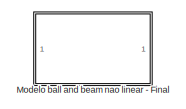
[diagram: root canvas - part 1/4, top left region]
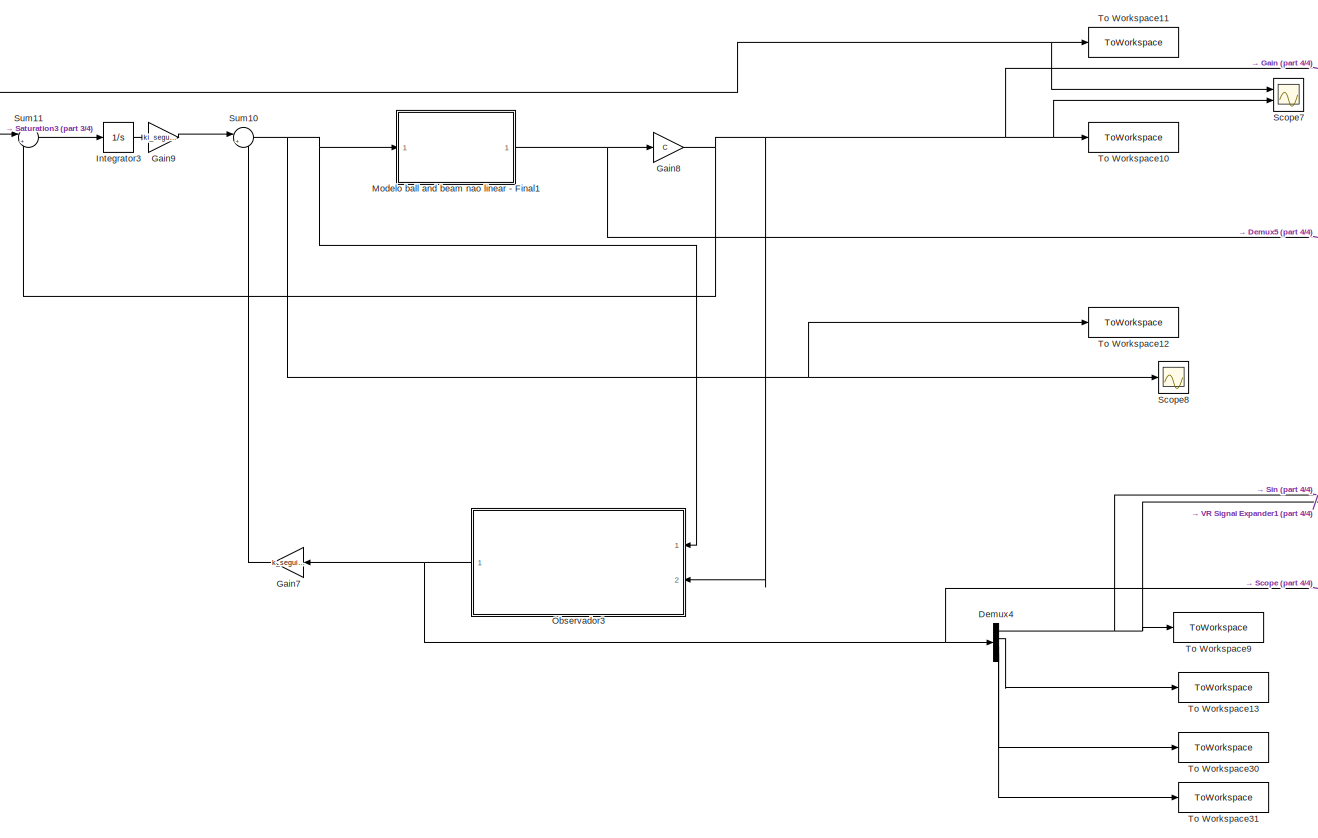
[diagram: root canvas - part 2/4, center side, full height]
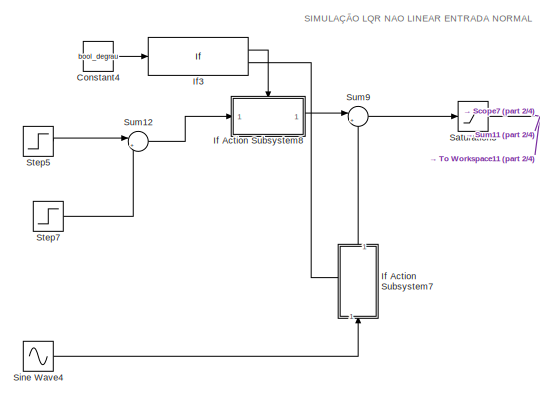
[diagram: root canvas - part 3/4, middle left region]
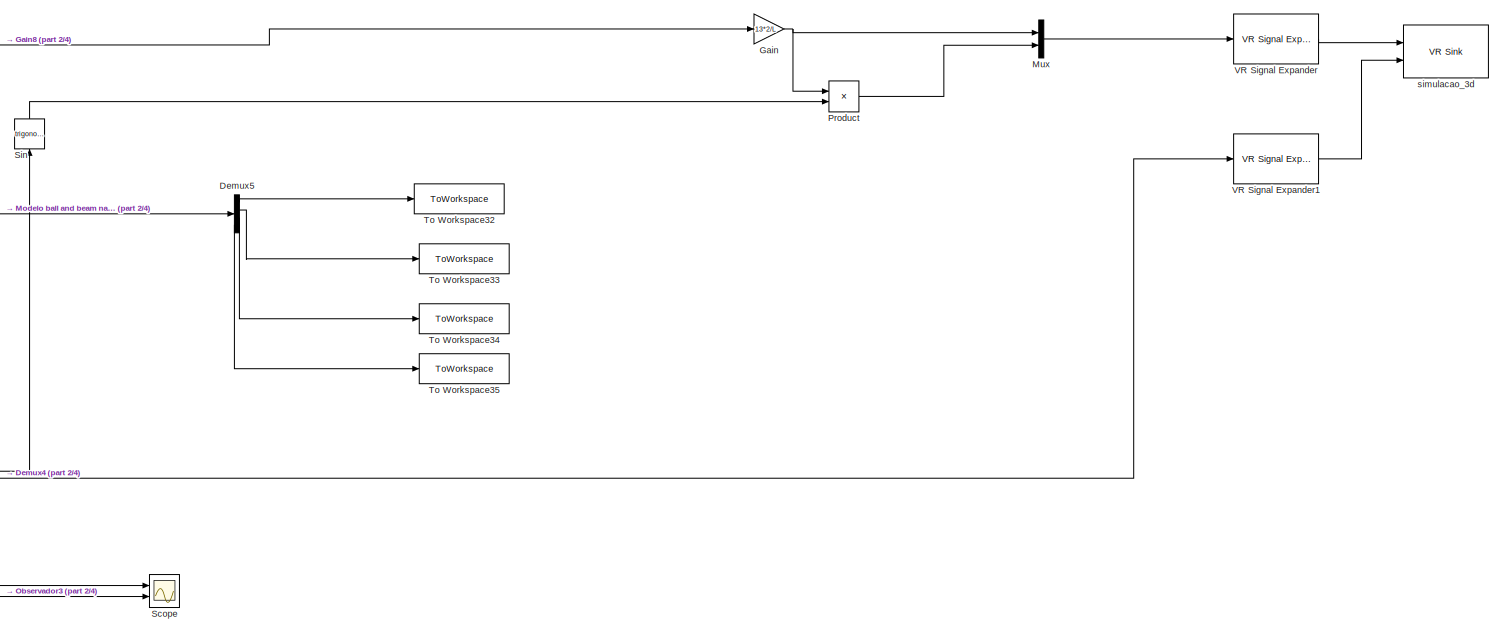
[diagram: root canvas - part 4/4, middle right region]
MODEL slx_c4135e72b5f1
KIND model
CONFIG AbsTol = auto
CONFIG EnableMultiTasking = off
CONFIG FixedStep = auto
CONFIG MaxStep = auto
CONFIG MinStep = auto
CONFIG RelTol = 1e-3
CONFIG SampleTimeConstraint = Unconstrained
CONFIG SolverName = VariableStepAuto
CONFIG StartTime = 0
CONFIG StopTime = 100
BLOCK [Constant] Constant4
  Value = bool_degrau
BLOCK [Demux] Demux4
  Ports = [1, 4]
BLOCK [Demux] Demux5
  Ports = [1, 4]
BLOCK [Gain] Gain
  Gain = 13*2/L
BLOCK [Gain] Gain7
  Gain = k_seguimento
  Multiplication = Matrix(K*u)
  NameLocation = top
BLOCK [Gain] Gain8
  Gain = C
  Multiplication = Matrix(K*u)
BLOCK [Gain] Gain9
  Gain = ki_seguimento
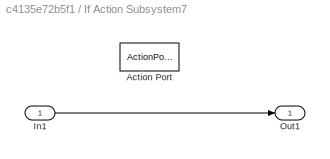
BLOCK [SubSystem] If Action Subsystem7
  NameLocation = right
  Ports = [1, 1, 0, 0, 0, 0, 0, 1]
  RequestExecContextInheritance = off
  TreatAsAtomicUnit = on
BLOCK [ActionPort] If Action Subsystem7/Action Port
  ActionPortLabel = else
BLOCK [Inport] If Action Subsystem7/In1
BLOCK [Outport] If Action Subsystem7/Out1
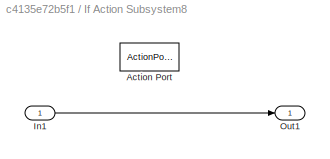
BLOCK [SubSystem] If Action Subsystem8
  Ports = [1, 1, 0, 0, 0, 0, 0, 1]
  RequestExecContextInheritance = off
  TreatAsAtomicUnit = on
BLOCK [ActionPort] If Action Subsystem8/Action Port
  ActionPortLabel = if(u1 == 1)
BLOCK [Inport] If Action Subsystem8/In1
BLOCK [Outport] If Action Subsystem8/Out1
BLOCK [If] If3
  IfExpression = u1 == 1
  Ports = [1, 2]
BLOCK [Integrator] Integrator3
  Ports = [1, 1]
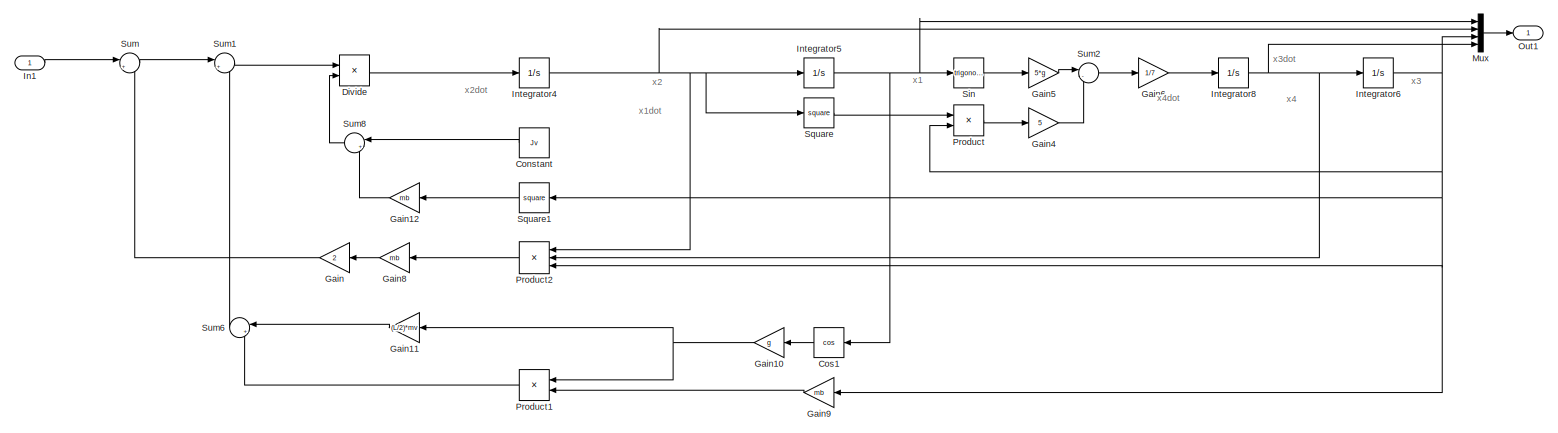
[diagram: Modelo ball and beam nao linear - Final - part 1/1, most of the canvas]
BLOCK [SubSystem] Modelo ball and beam nao linear - Final
  Ports = [1, 1]
  RequestExecContextInheritance = off
BLOCK [Constant] Modelo ball and beam nao linear - Final/Constant
  NameLocation = top
  Value = Jv
BLOCK [Trigonometry] Modelo ball and beam nao linear - Final/Cos1
  NameLocation = top
  Operator = cos
  Ports = [1, 1]
BLOCK [Product] Modelo ball and beam nao linear - Final/Divide
  Inputs = */
  Ports = [2, 1]
BLOCK [Gain] Modelo ball and beam nao linear - Final/Gain
  Gain = 2
  NameLocation = top
BLOCK [Gain] Modelo ball and beam nao linear - Final/Gain10
  Gain = g
  NameLocation = top
BLOCK [Gain] Modelo ball and beam nao linear - Final/Gain11
  Gain = (L/2)*mv
  NameLocation = top
BLOCK [Gain] Modelo ball and beam nao linear - Final/Gain12
  Gain = mb
  NameLocation = top
BLOCK [Gain] Modelo ball and beam nao linear - Final/Gain4
  Gain = 5
BLOCK [Gain] Modelo ball and beam nao linear - Final/Gain5
  Gain = 5*g
BLOCK [Gain] Modelo ball and beam nao linear - Final/Gain6
  Gain = 1/7
BLOCK [Gain] Modelo ball and beam nao linear - Final/Gain8
  Gain = mb
  NameLocation = top
BLOCK [Gain] Modelo ball and beam nao linear - Final/Gain9
  Gain = mb
  NameLocation = top
BLOCK [Inport] Modelo ball and beam nao linear - Final/In1
BLOCK [Integrator] Modelo ball and beam nao linear - Final/Integrator4
  Ports = [1, 1]
BLOCK [Integrator] Modelo ball and beam nao linear - Final/Integrator5
  Ports = [1, 1]
BLOCK [Integrator] Modelo ball and beam nao linear - Final/Integrator6
  Ports = [1, 1]
BLOCK [Integrator] Modelo ball and beam nao linear - Final/Integrator8
  Ports = [1, 1]
BLOCK [Mux] Modelo ball and beam nao linear - Final/Mux
  DisplayOption = bar
  Ports = [4, 1]
BLOCK [Outport] Modelo ball and beam nao linear - Final/Out1
BLOCK [Product] Modelo ball and beam nao linear - Final/Product
  Ports = [2, 1]
BLOCK [Product] Modelo ball and beam nao linear - Final/Product1
  NameLocation = top
  Ports = [2, 1]
BLOCK [Product] Modelo ball and beam nao linear - Final/Product2
  Inputs = 3
  NameLocation = top
  Ports = [3, 1]
BLOCK [Trigonometry] Modelo ball and beam nao linear - Final/Sin
  Ports = [1, 1]
BLOCK [Math] Modelo ball and beam nao linear - Final/Square
  Operator = square
  Ports = [1, 1]
BLOCK [Math] Modelo ball and beam nao linear - Final/Square1
  NameLocation = top
  Operator = square
  Ports = [1, 1]
BLOCK [Sum] Modelo ball and beam nao linear - Final/Sum
  Inputs = |+-
  Ports = [2, 1]
BLOCK [Sum] Modelo ball and beam nao linear - Final/Sum1
  Inputs = |+-
  Ports = [2, 1]
BLOCK [Sum] Modelo ball and beam nao linear - Final/Sum2
  Inputs = |-+
  NameLocation = top
  Ports = [2, 1]
BLOCK [Sum] Modelo ball and beam nao linear - Final/Sum6
  Inputs = |++
  NameLocation = top
  Ports = [2, 1]
BLOCK [Sum] Modelo ball and beam nao linear - Final/Sum8
  Inputs = |++
  NameLocation = top
  Ports = [2, 1]
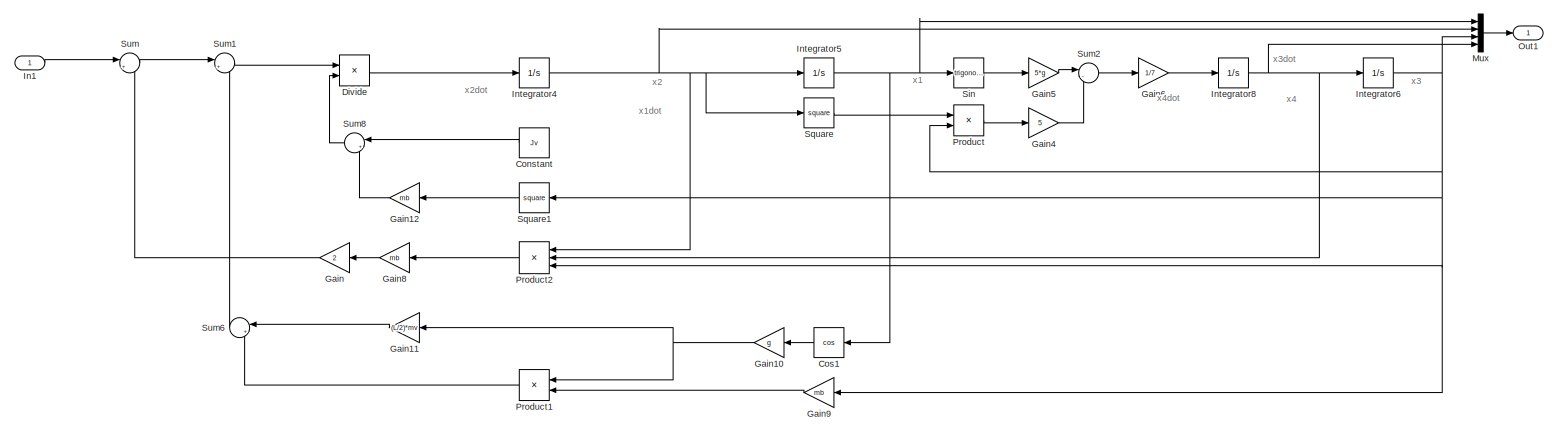
[diagram: Modelo ball and beam nao linear - Final1 - part 1/1, most of the canvas]
BLOCK [SubSystem] Modelo ball and beam nao linear - Final1
  Ports = [1, 1]
  RequestExecContextInheritance = off
BLOCK [Constant] Modelo ball and beam nao linear - Final1/Constant
  NameLocation = top
  Value = Jv
BLOCK [Trigonometry] Modelo ball and beam nao linear - Final1/Cos1
  NameLocation = top
  Operator = cos
  Ports = [1, 1]
BLOCK [Product] Modelo ball and beam nao linear - Final1/Divide
  Inputs = */
  Ports = [2, 1]
BLOCK [Gain] Modelo ball and beam nao linear - Final1/Gain
  Gain = 2
  NameLocation = top
BLOCK [Gain] Modelo ball and beam nao linear - Final1/Gain10
  Gain = g
  NameLocation = top
BLOCK [Gain] Modelo ball and beam nao linear - Final1/Gain11
  Gain = (L/2)*mv
  NameLocation = top
BLOCK [Gain] Modelo ball and beam nao linear - Final1/Gain12
  Gain = mb
  NameLocation = top
BLOCK [Gain] Modelo ball and beam nao linear - Final1/Gain4
  Gain = 5
BLOCK [Gain] Modelo ball and beam nao linear - Final1/Gain5
  Gain = 5*g
BLOCK [Gain] Modelo ball and beam nao linear - Final1/Gain6
  Gain = 1/7
BLOCK [Gain] Modelo ball and beam nao linear - Final1/Gain8
  Gain = mb
  NameLocation = top
BLOCK [Gain] Modelo ball and beam nao linear - Final1/Gain9
  Gain = mb
  NameLocation = top
BLOCK [Inport] Modelo ball and beam nao linear - Final1/In1
BLOCK [Integrator] Modelo ball and beam nao linear - Final1/Integrator4
  Ports = [1, 1]
BLOCK [Integrator] Modelo ball and beam nao linear - Final1/Integrator5
  Ports = [1, 1]
BLOCK [Integrator] Modelo ball and beam nao linear - Final1/Integrator6
  Ports = [1, 1]
BLOCK [Integrator] Modelo ball and beam nao linear - Final1/Integrator8
  Ports = [1, 1]
BLOCK [Mux] Modelo ball and beam nao linear - Final1/Mux
  DisplayOption = bar
  Ports = [4, 1]
BLOCK [Outport] Modelo ball and beam nao linear - Final1/Out1
BLOCK [Product] Modelo ball and beam nao linear - Final1/Product
  Ports = [2, 1]
BLOCK [Product] Modelo ball and beam nao linear - Final1/Product1
  NameLocation = top
  Ports = [2, 1]
BLOCK [Product] Modelo ball and beam nao linear - Final1/Product2
  Inputs = 3
  NameLocation = top
  Ports = [3, 1]
BLOCK [Trigonometry] Modelo ball and beam nao linear - Final1/Sin
  Ports = [1, 1]
BLOCK [Math] Modelo ball and beam nao linear - Final1/Square
  Operator = square
  Ports = [1, 1]
BLOCK [Math] Modelo ball and beam nao linear - Final1/Square1
  NameLocation = top
  Operator = square
  Ports = [1, 1]
BLOCK [Sum] Modelo ball and beam nao linear - Final1/Sum
  Inputs = |+-
  Ports = [2, 1]
BLOCK [Sum] Modelo ball and beam nao linear - Final1/Sum1
  Inputs = |+-
  Ports = [2, 1]
BLOCK [Sum] Modelo ball and beam nao linear - Final1/Sum2
  Inputs = |-+
  NameLocation = top
  Ports = [2, 1]
BLOCK [Sum] Modelo ball and beam nao linear - Final1/Sum6
  Inputs = |++
  NameLocation = top
  Ports = [2, 1]
BLOCK [Sum] Modelo ball and beam nao linear - Final1/Sum8
  Inputs = |++
  NameLocation = top
  Ports = [2, 1]
BLOCK [Mux] Mux
  DisplayOption = bar
  Inputs = 2
  Ports = [2, 1]
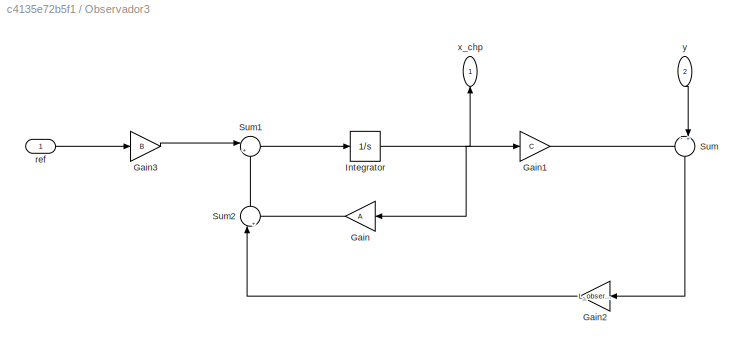
BLOCK [SubSystem] Observador3
  NameLocation = top
  Ports = [2, 1]
  RequestExecContextInheritance = off
BLOCK [Gain] Observador3/Gain
  Gain = A
  Multiplication = Matrix(K*u)
  NameLocation = top
BLOCK [Gain] Observador3/Gain1
  Gain = C
  Multiplication = Matrix(K*u)
BLOCK [Gain] Observador3/Gain2
  Gain = L_observer_lqr
  Multiplication = Matrix(K*u)
  NameLocation = top
BLOCK [Gain] Observador3/Gain3
  Gain = B
  Multiplication = Matrix(K*u)
BLOCK [Integrator] Observador3/Integrator
  Ports = [1, 1]
BLOCK [Sum] Observador3/Sum
  Inputs = -+|
  NameLocation = left
  Ports = [2, 1]
BLOCK [Sum] Observador3/Sum1
  Inputs = |++
  Ports = [2, 1]
BLOCK [Sum] Observador3/Sum2
  Inputs = |++
  NameLocation = right
  Ports = [2, 1]
BLOCK [Inport] Observador3/ref
BLOCK [Outport] Observador3/x_chp
  NameLocation = right
BLOCK [Inport] Observador3/y
  NameLocation = left
  Port = 2
BLOCK [Product] Product
  Ports = [2, 1]
BLOCK [Saturate] Saturation3
  LowerLimit = -L/2
  UpperLimit = L/2
BLOCK [Scope] Scope
  Floating = off
  NumInputPorts = 2
  Ports = [2]
  ScopeSpecificationString = Simulink.scopes.TimeScopeBlockCfg('CurrentConfiguration', extmgr.ConfigurationSet(extmgr.Configuration('Core','General UI',true),extmgr.Configuration('Core','Source UI',true),extmgr.Configuration('Sources','WiredSimulink',true,'DataLoggingVariableName','ScopeData1'),extmgr.Configuration('Visuals','Time Domain',true,'SerializedDisplays',{struct('MinYLimReal','-70043.69182','MaxYLimReal','82861.5366...<+1659ch>
BLOCK [Scope] Scope7
  Floating = off
  NumInputPorts = 2
  Ports = [2]
  ScopeSpecificationString = Simulink.scopes.TimeScopeBlockCfg('CurrentConfiguration', extmgr.ConfigurationSet(extmgr.Configuration('Core','General UI',true,'FigureColor',[1 1 1]),extmgr.Configuration('Core','Source UI',true),extmgr.Configuration('Sources','WiredSimulink',true,'DataLoggingVariableName','ScopeData1'),extmgr.Configuration('Visuals','Time Domain',true,'SerializedDisplays',{struct('MinYLimReal','-3536.58192','Max...<+1839ch>
BLOCK [Scope] Scope8
  Floating = off
  NumInputPorts = 1
  Ports = [1]
  ScopeSpecificationString = Simulink.scopes.TimeScopeBlockCfg('CurrentConfiguration', extmgr.ConfigurationSet(extmgr.Configuration('Core','General UI',true),extmgr.Configuration('Core','Source UI',true),extmgr.Configuration('Sources','WiredSimulink',true),extmgr.Configuration('Visuals','Time Domain',true,'SerializedDisplays',{struct('MinYLimReal','-16664.87649','MaxYLimReal','149983.88837','YLabelReal','','MinYLimMag','   0....<+1413ch>
BLOCK [Trigonometry] Sin
  NameLocation = right
  Ports = [1, 1]
BLOCK [Sin] Sine Wave4
  Amplitude = amplitude_entrada
  Frequency = 0.1
  Ports = [0, 1]
  SampleTime = 0
BLOCK [Step] Step5
  After = amplitude_entrada
  SampleTime = 0
BLOCK [Step] Step7
  After = -2*amplitude_entrada
  SampleTime = 0
  Time = 100
BLOCK [Sum] Sum10
  Inputs = |+-
  Ports = [2, 1]
BLOCK [Sum] Sum11
  Inputs = |+-
  Ports = [2, 1]
BLOCK [Sum] Sum12
  Inputs = |++
  Ports = [2, 1]
BLOCK [Sum] Sum9
  Inputs = |++
  Ports = [2, 1]
BLOCK [ToWorkspace] To Workspace10
  FixptAsFi = on
  MaxDataPoints = inf
  Ports = [1]
  SampleTime = -1
  SaveFormat = Timeseries
  VariableName = y_output
BLOCK [ToWorkspace] To Workspace11
  FixptAsFi = on
  MaxDataPoints = inf
  Ports = [1]
  SampleTime = -1
  SaveFormat = Timeseries
  VariableName = u_output
BLOCK [ToWorkspace] To Workspace12
  FixptAsFi = on
  MaxDataPoints = inf
  Ports = [1]
  SampleTime = -1
  SaveFormat = Timeseries
  VariableName = acao_controle
BLOCK [ToWorkspace] To Workspace13
  FixptAsFi = on
  MaxDataPoints = inf
  Ports = [1]
  SampleTime = -1
  SaveFormat = Timeseries
  VariableName = output_estados_observador_2
BLOCK [ToWorkspace] To Workspace30
  FixptAsFi = on
  MaxDataPoints = inf
  Ports = [1]
  SampleTime = -1
  SaveFormat = Timeseries
  VariableName = output_estados_observador_3
BLOCK [ToWorkspace] To Workspace31
  FixptAsFi = on
  MaxDataPoints = inf
  Ports = [1]
  SampleTime = -1
  SaveFormat = Timeseries
  VariableName = output_estados_observador_4
BLOCK [ToWorkspace] To Workspace32
  FixptAsFi = on
  MaxDataPoints = inf
  Ports = [1]
  SampleTime = -1
  SaveFormat = Timeseries
  VariableName = output_estados_1
BLOCK [ToWorkspace] To Workspace33
  FixptAsFi = on
  MaxDataPoints = inf
  Ports = [1]
  SampleTime = -1
  SaveFormat = Timeseries
  VariableName = output_estados_2
BLOCK [ToWorkspace] To Workspace34
  FixptAsFi = on
  MaxDataPoints = inf
  Ports = [1]
  SampleTime = -1
  SaveFormat = Timeseries
  VariableName = output_estados_3
BLOCK [ToWorkspace] To Workspace35
  FixptAsFi = on
  MaxDataPoints = inf
  Ports = [1]
  SampleTime = -1
  SaveFormat = Timeseries
  VariableName = output_estados_4
BLOCK [ToWorkspace] To Workspace9
  FixptAsFi = on
  MaxDataPoints = inf
  Ports = [1]
  SampleTime = -1
  SaveFormat = Timeseries
  VariableName = output_estados_observador_1
BLOCK [Reference] VR Signal Expander  REF=vrlib/VR Signal Expander
  Ports = [1, 1]
  SourceBlock = vrlib/VR Signal Expander
  SourceProductBaseCode = SL
  SourceType = VR Signal Expander
BLOCK [Reference] VR Signal Expander1  REF=vrlib/VR Signal Expander
  Ports = [1, 1]
  SourceBlock = vrlib/VR Signal Expander
  SourceProductBaseCode = SL
  SourceType = VR Signal Expander
BLOCK [Reference] simulacao_3d  REF=vrlib/VR Sink
  InstantiateOnLoad = on
  Ports = [2]
  SourceBlock = vrlib/VR Sink
  SourceProductBaseCode = SL
  SourceType = Virtual Reality Sink
ANNOTATION (root): SIMULAÇÃO LQR NAO LINEAR ENTRADA NORMAL
ANNOTATION Modelo ball and beam nao linear - Final: x1
ANNOTATION Modelo ball and beam nao linear - Final: x1dot
ANNOTATION Modelo ball and beam nao linear - Final: x2
ANNOTATION Modelo ball and beam nao linear - Final: x2dot
ANNOTATION Modelo ball and beam nao linear - Final: x3
ANNOTATION Modelo ball and beam nao linear - Final: x3dot
ANNOTATION Modelo ball and beam nao linear - Final: x4
ANNOTATION Modelo ball and beam nao linear - Final: x4dot
ANNOTATION Modelo ball and beam nao linear - Final1: x1
ANNOTATION Modelo ball and beam nao linear - Final1: x1dot
ANNOTATION Modelo ball and beam nao linear - Final1: x2
ANNOTATION Modelo ball and beam nao linear - Final1: x2dot
ANNOTATION Modelo ball and beam nao linear - Final1: x3
ANNOTATION Modelo ball and beam nao linear - Final1: x3dot
ANNOTATION Modelo ball and beam nao linear - Final1: x4
ANNOTATION Modelo ball and beam nao linear - Final1: x4dot
LINE Constant4:1 -> If3:1
NET Demux4:1 -> Sin:1, To Workspace9:1, VR Signal Expander1:1
LINE Demux4:2 -> To Workspace13:1
LINE Demux4:3 -> To Workspace30:1
LINE Demux4:4 -> To Workspace31:1
LINE Demux5:1 -> To Workspace32:1
LINE Demux5:2 -> To Workspace33:1
LINE Demux5:3 -> To Workspace34:1
LINE Demux5:4 -> To Workspace35:1
LINE Gain7:1 -> Sum10:2
NET Gain8:1 -> Gain:1, Observador3:2, Scope7:2, Sum11:2, To Workspace10:1
LINE Gain9:1 -> Sum10:1
NET Gain:1 -> Mux:1, Product:1
LINE If Action Subsystem7/In1:1 -> If Action Subsystem7/Out1:1
LINE If Action Subsystem7:1 -> Sum9:2
LINE If Action Subsystem8/In1:1 -> If Action Subsystem8/Out1:1
LINE If Action Subsystem8:1 -> Sum9:1
LINE If3:1 -> If Action Subsystem8:ifaction
LINE If3:2 -> If Action Subsystem7:ifaction
LINE Integrator3:1 -> Gain9:1
LINE Modelo ball and beam nao linear - Final/Constant:1 -> Modelo ball and beam nao linear - Final/Sum8:1
LINE Modelo ball and beam nao linear - Final/Cos1:1 -> Modelo ball and beam nao linear - Final/Gain10:1
LINE Modelo ball and beam nao linear - Final/Divide:1 -> Modelo ball and beam nao linear - Final/Integrator4:1
NET Modelo ball and beam nao linear - Final/Gain10:1 -> Modelo ball and beam nao linear - Final/Gain11:1, Modelo ball and beam nao linear - Final/Product1:1
LINE Modelo ball and beam nao linear - Final/Gain11:1 -> Modelo ball and beam nao linear - Final/Sum6:1
LINE Modelo ball and beam nao linear - Final/Gain12:1 -> Modelo ball and beam nao linear - Final/Sum8:2
LINE Modelo ball and beam nao linear - Final/Gain4:1 -> Modelo ball and beam nao linear - Final/Sum2:2
LINE Modelo ball and beam nao linear - Final/Gain5:1 -> Modelo ball and beam nao linear - Final/Sum2:1
LINE Modelo ball and beam nao linear - Final/Gain6:1 -> Modelo ball and beam nao linear - Final/Integrator8:1
LINE Modelo ball and beam nao linear - Final/Gain8:1 -> Modelo ball and beam nao linear - Final/Gain:1
LINE Modelo ball and beam nao linear - Final/Gain9:1 -> Modelo ball and beam nao linear - Final/Product1:2
LINE Modelo ball and beam nao linear - Final/Gain:1 -> Modelo ball and beam nao linear - Final/Sum:2
LINE Modelo ball and beam nao linear - Final/In1:1 -> Modelo ball and beam nao linear - Final/Sum:1
NET Modelo ball and beam nao linear - Final/Integrator4:1 -> Modelo ball and beam nao linear - Final/Integrator5:1, Modelo ball and beam nao linear - Final/Mux:2, Modelo ball and beam nao linear - Final/Product2:1, Modelo ball and beam nao linear - Final/Square:1
NET Modelo ball and beam nao linear - Final/Integrator5:1 -> Modelo ball and beam nao linear - Final/Cos1:1, Modelo ball and beam nao linear - Final/Mux:1, Modelo ball and beam nao linear - Final/Sin:1
NET Modelo ball and beam nao linear - Final/Integrator6:1 -> Modelo ball and beam nao linear - Final/Gain9:1, Modelo ball and beam nao linear - Final/Mux:3, Modelo ball and beam nao linear - Final/Product2:3, Modelo ball and beam nao linear - Final/Product:2, Modelo ball and beam nao linear - Final/Square1:1
NET Modelo ball and beam nao linear - Final/Integrator8:1 -> Modelo ball and beam nao linear - Final/Integrator6:1, Modelo ball and beam nao linear - Final/Mux:4, Modelo ball and beam nao linear - Final/Product2:2
LINE Modelo ball and beam nao linear - Final/Mux:1 -> Modelo ball and beam nao linear - Final/Out1:1
LINE Modelo ball and beam nao linear - Final/Product1:1 -> Modelo ball and beam nao linear - Final/Sum6:2
LINE Modelo ball and beam nao linear - Final/Product2:1 -> Modelo ball and beam nao linear - Final/Gain8:1
LINE Modelo ball and beam nao linear - Final/Product:1 -> Modelo ball and beam nao linear - Final/Gain4:1
LINE Modelo ball and beam nao linear - Final/Sin:1 -> Modelo ball and beam nao linear - Final/Gain5:1
LINE Modelo ball and beam nao linear - Final/Square1:1 -> Modelo ball and beam nao linear - Final/Gain12:1
LINE Modelo ball and beam nao linear - Final/Square:1 -> Modelo ball and beam nao linear - Final/Product:1
LINE Modelo ball and beam nao linear - Final/Sum1:1 -> Modelo ball and beam nao linear - Final/Divide:1
LINE Modelo ball and beam nao linear - Final/Sum2:1 -> Modelo ball and beam nao linear - Final/Gain6:1
LINE Modelo ball and beam nao linear - Final/Sum6:1 -> Modelo ball and beam nao linear - Final/Sum1:2
LINE Modelo ball and beam nao linear - Final/Sum8:1 -> Modelo ball and beam nao linear - Final/Divide:2
LINE Modelo ball and beam nao linear - Final/Sum:1 -> Modelo ball and beam nao linear - Final/Sum1:1
LINE Modelo ball and beam nao linear - Final1/Constant:1 -> Modelo ball and beam nao linear - Final1/Sum8:1
LINE Modelo ball and beam nao linear - Final1/Cos1:1 -> Modelo ball and beam nao linear - Final1/Gain10:1
LINE Modelo ball and beam nao linear - Final1/Divide:1 -> Modelo ball and beam nao linear - Final1/Integrator4:1
NET Modelo ball and beam nao linear - Final1/Gain10:1 -> Modelo ball and beam nao linear - Final1/Gain11:1, Modelo ball and beam nao linear - Final1/Product1:1
LINE Modelo ball and beam nao linear - Final1/Gain11:1 -> Modelo ball and beam nao linear - Final1/Sum6:1
LINE Modelo ball and beam nao linear - Final1/Gain12:1 -> Modelo ball and beam nao linear - Final1/Sum8:2
LINE Modelo ball and beam nao linear - Final1/Gain4:1 -> Modelo ball and beam nao linear - Final1/Sum2:2
LINE Modelo ball and beam nao linear - Final1/Gain5:1 -> Modelo ball and beam nao linear - Final1/Sum2:1
LINE Modelo ball and beam nao linear - Final1/Gain6:1 -> Modelo ball and beam nao linear - Final1/Integrator8:1
LINE Modelo ball and beam nao linear - Final1/Gain8:1 -> Modelo ball and beam nao linear - Final1/Gain:1
LINE Modelo ball and beam nao linear - Final1/Gain9:1 -> Modelo ball and beam nao linear - Final1/Product1:2
LINE Modelo ball and beam nao linear - Final1/Gain:1 -> Modelo ball and beam nao linear - Final1/Sum:2
LINE Modelo ball and beam nao linear - Final1/In1:1 -> Modelo ball and beam nao linear - Final1/Sum:1
NET Modelo ball and beam nao linear - Final1/Integrator4:1 -> Modelo ball and beam nao linear - Final1/Integrator5:1, Modelo ball and beam nao linear - Final1/Mux:2, Modelo ball and beam nao linear - Final1/Product2:1, Modelo ball and beam nao linear - Final1/Square:1
NET Modelo ball and beam nao linear - Final1/Integrator5:1 -> Modelo ball and beam nao linear - Final1/Cos1:1, Modelo ball and beam nao linear - Final1/Mux:1, Modelo ball and beam nao linear - Final1/Sin:1
NET Modelo ball and beam nao linear - Final1/Integrator6:1 -> Modelo ball and beam nao linear - Final1/Gain9:1, Modelo ball and beam nao linear - Final1/Mux:3, Modelo ball and beam nao linear - Final1/Product2:3, Modelo ball and beam nao linear - Final1/Product:2, Modelo ball and beam nao linear - Final1/Square1:1
NET Modelo ball and beam nao linear - Final1/Integrator8:1 -> Modelo ball and beam nao linear - Final1/Integrator6:1, Modelo ball and beam nao linear - Final1/Mux:4, Modelo ball and beam nao linear - Final1/Product2:2
LINE Modelo ball and beam nao linear - Final1/Mux:1 -> Modelo ball and beam nao linear - Final1/Out1:1
LINE Modelo ball and beam nao linear - Final1/Product1:1 -> Modelo ball and beam nao linear - Final1/Sum6:2
LINE Modelo ball and beam nao linear - Final1/Product2:1 -> Modelo ball and beam nao linear - Final1/Gain8:1
LINE Modelo ball and beam nao linear - Final1/Product:1 -> Modelo ball and beam nao linear - Final1/Gain4:1
LINE Modelo ball and beam nao linear - Final1/Sin:1 -> Modelo ball and beam nao linear - Final1/Gain5:1
LINE Modelo ball and beam nao linear - Final1/Square1:1 -> Modelo ball and beam nao linear - Final1/Gain12:1
LINE Modelo ball and beam nao linear - Final1/Square:1 -> Modelo ball and beam nao linear - Final1/Product:1
LINE Modelo ball and beam nao linear - Final1/Sum1:1 -> Modelo ball and beam nao linear - Final1/Divide:1
LINE Modelo ball and beam nao linear - Final1/Sum2:1 -> Modelo ball and beam nao linear - Final1/Gain6:1
LINE Modelo ball and beam nao linear - Final1/Sum6:1 -> Modelo ball and beam nao linear - Final1/Sum1:2
LINE Modelo ball and beam nao linear - Final1/Sum8:1 -> Modelo ball and beam nao linear - Final1/Divide:2
LINE Modelo ball and beam nao linear - Final1/Sum:1 -> Modelo ball and beam nao linear - Final1/Sum1:1
NET Modelo ball and beam nao linear - Final1:1 -> Demux5:1, Gain8:1, Scope:1
LINE Mux:1 -> VR Signal Expander:1
LINE Observador3/Gain1:1 -> Observador3/Sum:1
LINE Observador3/Gain2:1 -> Observador3/Sum2:1
LINE Observador3/Gain3:1 -> Observador3/Sum1:1
LINE Observador3/Gain:1 -> Observador3/Sum2:2
NET Observador3/Integrator:1 -> Observador3/Gain1:1, Observador3/Gain:1, Observador3/x_chp:1
LINE Observador3/Sum1:1 -> Observador3/Integrator:1
LINE Observador3/Sum2:1 -> Observador3/Sum1:2
LINE Observador3/Sum:1 -> Observador3/Gain2:1
LINE Observador3/ref:1 -> Observador3/Gain3:1
LINE Observador3/y:1 -> Observador3/Sum:2
NET Observador3:1 -> Demux4:1, Gain7:1, Scope:2
LINE Product:1 -> Mux:2
NET Saturation3:1 -> Scope7:1, Sum11:1, To Workspace11:1
LINE Sin:1 -> Product:2
LINE Sine Wave4:1 -> If Action Subsystem7:1
LINE Step5:1 -> Sum12:1
LINE Step7:1 -> Sum12:2
NET Sum10:1 -> Modelo ball and beam nao linear - Final1:1, Observador3:1, Scope8:1, To Workspace12:1
LINE Sum11:1 -> Integrator3:1
LINE Sum12:1 -> If Action Subsystem8:1
LINE Sum9:1 -> Saturation3:1
LINE VR Signal Expander1:1 -> simulacao_3d:2
LINE VR Signal Expander:1 -> simulacao_3d:1
note: NET lines group one-source signal fan-out (src -> all destinations, sorted); 1:1 wires keep LINE
